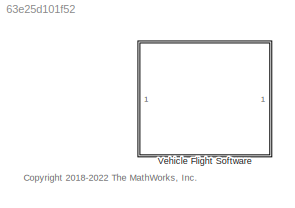
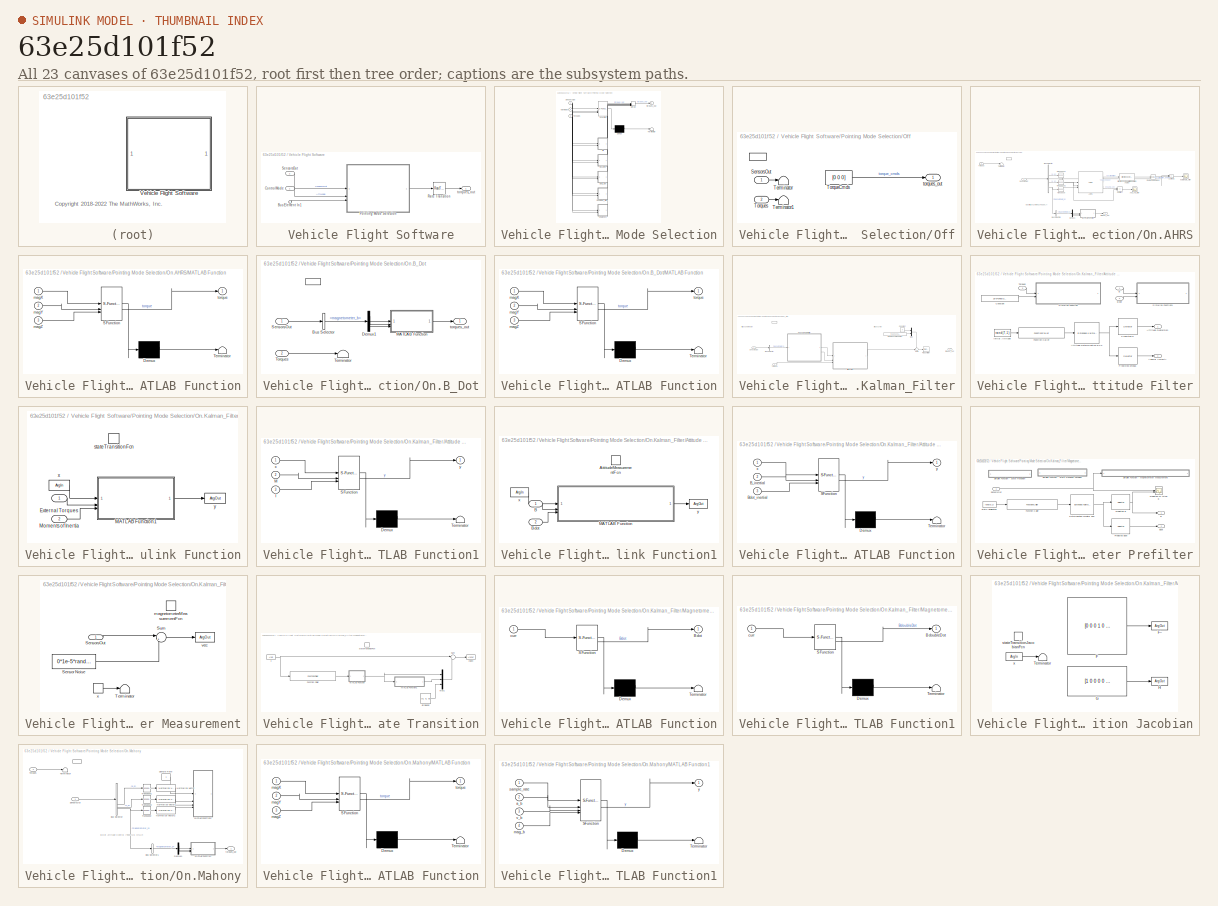
[diagram: thumbnail index - all 23 canvases of the model, root first then tree order]
MODEL slx_63e25d101f52
KIND library
CONFIG AbsTol = auto
CONFIG EnableMultiTasking = off
CONFIG FixedStep = auto
CONFIG MaxStep = auto
CONFIG MinStep = auto
CONFIG RelTol = 1e-3
CONFIG SampleTimeConstraint = Unconstrained
CONFIG SolverName = VariableStepAuto
CONFIG StartTime = 0.0
CONFIG StopTime = 10.0
BLOCK [SubSystem] Vehicle Flight Software
BLOCK [Inport] Vehicle Flight Software/Bus Element In1
  Port = 3
BLOCK [Inport] Vehicle Flight Software/ControlMode
BLOCK [SubSystem] Vehicle Flight Software/Pointing Mode Selection
  ErrorFcn = Stateflow.Translate.translate
  PermitHierarchicalResolution = ExplicitOnly
  SFBlockType = Chart
  SystemSampleTime = 1
  TreatAsAtomicUnit = on
BLOCK [Demux] Vehicle Flight Software/Pointing Mode Selection/ Demux 
  Outputs = 1
BLOCK [Merge] Vehicle Flight Software/Pointing Mode Selection/ Merge 
  Inputs = 6
BLOCK [S-Function] Vehicle Flight Software/Pointing Mode Selection/ SFunction 
  EnableBusSupport = off
  FunctionName = sf_sfun
  PortCounts = [3 2]
  SFcnIsStateOwnerBlock = off
  SFunctionDeploymentMode = off
  Tag = Stateflow S-Function 1
BLOCK [Terminator] Vehicle Flight Software/Pointing Mode Selection/ Terminator 
BLOCK [Inport] Vehicle Flight Software/Pointing Mode Selection/NavMode
  Port = 2
BLOCK [SubSystem] Vehicle Flight Software/Pointing Mode Selection/Off
  PreDeleteFcn = Stateflow.SLINSF.SimulinkMan.removePreDeleteFcn
  UndoDeleteFcn = Stateflow.SLINSF.SimulinkMan.restorePreDeleteFcn
BLOCK [ActionPort] Vehicle Flight Software/Pointing Mode Selection/Off/ 
  CopyFcn = Stateflow.SLINSF.SimulinkMan.removeBlockPreDeleteFcn
  PreDeleteFcn = Stateflow.SLINSF.SimulinkMan.unsafePredeleteFcn
BLOCK [Inport] Vehicle Flight Software/Pointing Mode Selection/Off/SensorsOut
BLOCK [Terminator] Vehicle Flight Software/Pointing Mode Selection/Off/Terminator
BLOCK [Terminator] Vehicle Flight Software/Pointing Mode Selection/Off/Terminator1
BLOCK [Constant] Vehicle Flight Software/Pointing Mode Selection/Off/TorqueCmds
  Value = [0 0 0]
BLOCK [Inport] Vehicle Flight Software/Pointing Mode Selection/Off/Torques
  Port = 2
  PortDimensions = 3
BLOCK [Outport] Vehicle Flight Software/Pointing Mode Selection/Off/torques_out
  VectorParamsAs1DForOutWhenUnconnected = off
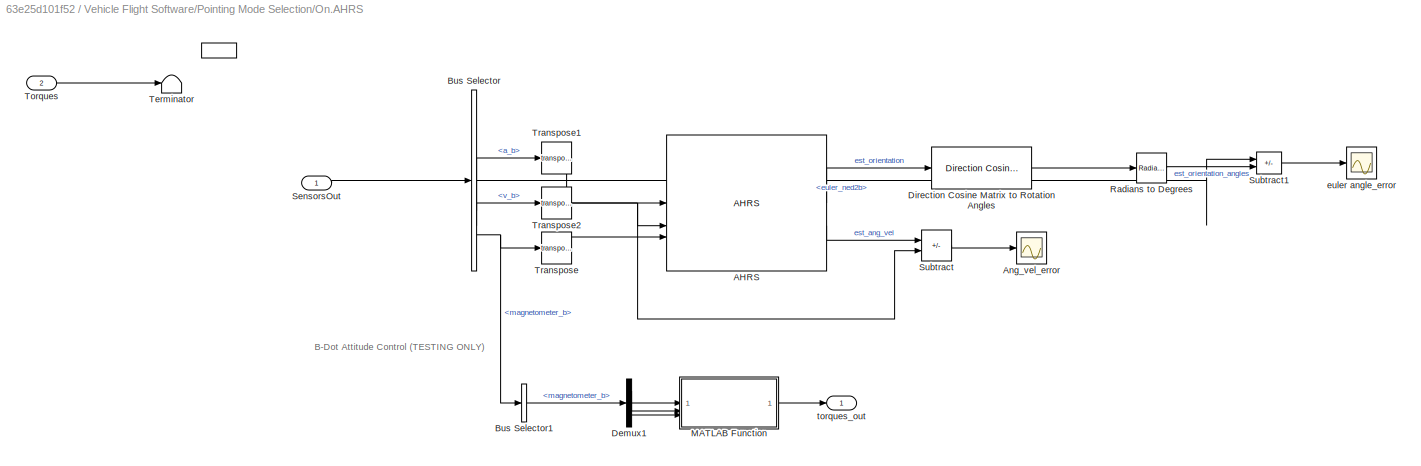
BLOCK [SubSystem] Vehicle Flight Software/Pointing Mode Selection/On.AHRS
  PreDeleteFcn = Stateflow.SLINSF.SimulinkMan.removePreDeleteFcn
  UndoDeleteFcn = Stateflow.SLINSF.SimulinkMan.restorePreDeleteFcn
BLOCK [ActionPort] Vehicle Flight Software/Pointing Mode Selection/On.AHRS/ 
  CopyFcn = Stateflow.SLINSF.SimulinkMan.removeBlockPreDeleteFcn
  PreDeleteFcn = Stateflow.SLINSF.SimulinkMan.unsafePredeleteFcn
BLOCK [Reference] Vehicle Flight Software/Pointing Mode Selection/On.AHRS/AHRS  REF=mspfiltlib/AHRS
  SourceBlock = mspfiltlib/AHRS
  SourceType = fusion.simulink.ahrsfilter
BLOCK [Scope] Vehicle Flight Software/Pointing Mode Selection/On.AHRS/Ang_vel_error
  Floating = off
  NumInputPorts = 1
  ScopeSpecificationString = Simulink.scopes.TimeScopeBlockCfg('CurrentConfiguration', extmgr.ConfigurationSet(extmgr.Configuration('Core','General UI',true),extmgr.Configuration('Core','Source UI',true),extmgr.Configuration('Sources','WiredSimulink',true,'DataLoggingVariableName','ScopeData1'),extmgr.Configuration('Visuals','Time Domain',true,'SerializedDisplays',{struct('MinYLimReal','-0.45696','MaxYLimReal','0.2497','YLabe...<+1472ch>
BLOCK [BusSelector] Vehicle Flight Software/Pointing Mode Selection/On.AHRS/Bus Selector
  OutputSignals = euler_ned2b,a_b,v_b,magnetometer_b
BLOCK [BusSelector] Vehicle Flight Software/Pointing Mode Selection/On.AHRS/Bus Selector1
  OutputSignals = magnetometer_b
BLOCK [Demux] Vehicle Flight Software/Pointing Mode Selection/On.AHRS/Demux1
  Outputs = 3
BLOCK [Reference] Vehicle Flight Software/Pointing Mode Selection/On.AHRS/Direction Cosine Matrix to Rotation Angles  REF=sharedtransform/Direction Cosine Matrix
to Rotation Angles
  AttributesFormatString = Rotation Order: %<rotationOrder>
  LibrarySourceBlock = aerolibtransform2/Direction Cosine Matrix\nto Rotation Angles
  SourceBlock = sharedtransform/Direction Cosine Matrix\nto Rotation Angles
  SourceType = DCM2Ang
BLOCK [SubSystem] Vehicle Flight Software/Pointing Mode Selection/On.AHRS/MATLAB Function
  ErrorFcn = Stateflow.Translate.translate
  PermitHierarchicalResolution = ExplicitOnly
  SFBlockType = MATLAB Function
  TreatAsAtomicUnit = on
BLOCK [Demux] Vehicle Flight Software/Pointing Mode Selection/On.AHRS/MATLAB Function/ Demux 
  Outputs = 1
BLOCK [S-Function] Vehicle Flight Software/Pointing Mode Selection/On.AHRS/MATLAB Function/ SFunction 
  EnableBusSupport = off
  FunctionName = sf_sfun
  PortCounts = [3 2]
  SFcnIsStateOwnerBlock = off
  SFunctionDeploymentMode = off
  Tag = Stateflow S-Function 4
BLOCK [Terminator] Vehicle Flight Software/Pointing Mode Selection/On.AHRS/MATLAB Function/ Terminator 
BLOCK [Inport] Vehicle Flight Software/Pointing Mode Selection/On.AHRS/MATLAB Function/magX
BLOCK [Inport] Vehicle Flight Software/Pointing Mode Selection/On.AHRS/MATLAB Function/magY
  Port = 2
BLOCK [Inport] Vehicle Flight Software/Pointing Mode Selection/On.AHRS/MATLAB Function/magZ
  Port = 3
BLOCK [Outport] Vehicle Flight Software/Pointing Mode Selection/On.AHRS/MATLAB Function/torque
BLOCK [Reference] Vehicle Flight Software/Pointing Mode Selection/On.AHRS/Radians to Degrees  REF=simulink_extras/Transformations/Radians
to Degrees
  SourceBlock = simulink_extras/Transformations/Radians\nto Degrees
  SourceType = RadiansToDegrees
BLOCK [Inport] Vehicle Flight Software/Pointing Mode Selection/On.AHRS/SensorsOut
BLOCK [Sum] Vehicle Flight Software/Pointing Mode Selection/On.AHRS/Subtract
  IconShape = rectangular
  Inputs = +-
BLOCK [Sum] Vehicle Flight Software/Pointing Mode Selection/On.AHRS/Subtract1
  IconShape = rectangular
  Inputs = -+
BLOCK [Terminator] Vehicle Flight Software/Pointing Mode Selection/On.AHRS/Terminator
BLOCK [Inport] Vehicle Flight Software/Pointing Mode Selection/On.AHRS/Torques
  Port = 2
  PortDimensions = 3
BLOCK [Math] Vehicle Flight Software/Pointing Mode Selection/On.AHRS/Transpose
  Operator = transpose
BLOCK [Math] Vehicle Flight Software/Pointing Mode Selection/On.AHRS/Transpose1
  Operator = transpose
BLOCK [Math] Vehicle Flight Software/Pointing Mode Selection/On.AHRS/Transpose2
  Operator = transpose
BLOCK [Scope] Vehicle Flight Software/Pointing Mode Selection/On.AHRS/euler angle_error
  Floating = off
  NumInputPorts = 1
  ScopeSpecificationString = Simulink.scopes.TimeScopeBlockCfg('CurrentConfiguration', extmgr.ConfigurationSet(extmgr.Configuration('Core','General UI',true),extmgr.Configuration('Core','Source UI',true),extmgr.Configuration('Sources','WiredSimulink',true,'DataLoggingVariableName','ScopeData2'),extmgr.Configuration('Visuals','Time Domain',true,'SerializedDisplays',{struct('MinYLimReal','-260.38659','MaxYLimReal','190.91881','...<+1511ch>
BLOCK [Outport] Vehicle Flight Software/Pointing Mode Selection/On.AHRS/torques_out
  VectorParamsAs1DForOutWhenUnconnected = off
BLOCK [SubSystem] Vehicle Flight Software/Pointing Mode Selection/On.B_Dot
  PreDeleteFcn = Stateflow.SLINSF.SimulinkMan.removePreDeleteFcn
  UndoDeleteFcn = Stateflow.SLINSF.SimulinkMan.restorePreDeleteFcn
BLOCK [ActionPort] Vehicle Flight Software/Pointing Mode Selection/On.B_Dot/ 
  CopyFcn = Stateflow.SLINSF.SimulinkMan.removeBlockPreDeleteFcn
  PreDeleteFcn = Stateflow.SLINSF.SimulinkMan.unsafePredeleteFcn
BLOCK [BusSelector] Vehicle Flight Software/Pointing Mode Selection/On.B_Dot/Bus Selector
  OutputSignals = magnetometer_b
BLOCK [Demux] Vehicle Flight Software/Pointing Mode Selection/On.B_Dot/Demux1
  Outputs = 3
BLOCK [SubSystem] Vehicle Flight Software/Pointing Mode Selection/On.B_Dot/MATLAB Function
  ErrorFcn = Stateflow.Translate.translate
  PermitHierarchicalResolution = ExplicitOnly
  SFBlockType = MATLAB Function
  TreatAsAtomicUnit = on
BLOCK [Demux] Vehicle Flight Software/Pointing Mode Selection/On.B_Dot/MATLAB Function/ Demux 
  Outputs = 1
BLOCK [S-Function] Vehicle Flight Software/Pointing Mode Selection/On.B_Dot/MATLAB Function/ SFunction 
  EnableBusSupport = off
  FunctionName = sf_sfun
  PortCounts = [3 2]
  SFcnIsStateOwnerBlock = off
  SFunctionDeploymentMode = off
  Tag = Stateflow S-Function 3
BLOCK [Terminator] Vehicle Flight Software/Pointing Mode Selection/On.B_Dot/MATLAB Function/ Terminator 
BLOCK [Inport] Vehicle Flight Software/Pointing Mode Selection/On.B_Dot/MATLAB Function/magX
BLOCK [Inport] Vehicle Flight Software/Pointing Mode Selection/On.B_Dot/MATLAB Function/magY
  Port = 2
BLOCK [Inport] Vehicle Flight Software/Pointing Mode Selection/On.B_Dot/MATLAB Function/magZ
  Port = 3
BLOCK [Outport] Vehicle Flight Software/Pointing Mode Selection/On.B_Dot/MATLAB Function/torque
BLOCK [Inport] Vehicle Flight Software/Pointing Mode Selection/On.B_Dot/SensorsOut
BLOCK [Terminator] Vehicle Flight Software/Pointing Mode Selection/On.B_Dot/Terminator
BLOCK [Inport] Vehicle Flight Software/Pointing Mode Selection/On.B_Dot/Torques
  Port = 2
  PortDimensions = 3
BLOCK [Outport] Vehicle Flight Software/Pointing Mode Selection/On.B_Dot/torques_out
  VectorParamsAs1DForOutWhenUnconnected = off
BLOCK [SubSystem] Vehicle Flight Software/Pointing Mode Selection/On.Kalman_Filter
  PreDeleteFcn = Stateflow.SLINSF.SimulinkMan.removePreDeleteFcn
  UndoDeleteFcn = Stateflow.SLINSF.SimulinkMan.restorePreDeleteFcn
BLOCK [ActionPort] Vehicle Flight Software/Pointing Mode Selection/On.Kalman_Filter/ 
  CopyFcn = Stateflow.SLINSF.SimulinkMan.removeBlockPreDeleteFcn
  PreDeleteFcn = Stateflow.SLINSF.SimulinkMan.unsafePredeleteFcn
BLOCK [SubSystem] Vehicle Flight Software/Pointing Mode Selection/On.Kalman_Filter/Attitude Filter
  Commented = on
BLOCK [Outport] Vehicle Flight Software/Pointing Mode Selection/On.Kalman_Filter/Attitude Filter/Angular Velocity
  Port = 2
BLOCK [Reference] Vehicle Flight Software/Pointing Mode Selection/On.Kalman_Filter/Attitude Filter/Attitude Determination EKF   REF=sharedTrackingLibrary/Extended Kalman Filter
  LibrarySourceBlock = cstblocks/State Estimation/Extended Kalman Filter
  SourceBlock = sharedTrackingLibrary/Extended Kalman Filter
  SourceType = Extended Kalman Filter
BLOCK [Outport] Vehicle Flight Software/Pointing Mode Selection/On.Kalman_Filter/Attitude Filter/Attitude Quaternion
BLOCK [Inport] Vehicle Flight Software/Pointing Mode Selection/On.Kalman_Filter/Attitude Filter/B
BLOCK [Inport] Vehicle Flight Software/Pointing Mode Selection/On.Kalman_Filter/Attitude Filter/Bdot
  Port = 2
BLOCK [Constant] Vehicle Flight Software/Pointing Mode Selection/On.Kalman_Filter/Attitude Filter/Constant
  Value = 1e-5*ones(3,1)
BLOCK [FunctionCaller] Vehicle Flight Software/Pointing Mode Selection/On.Kalman_Filter/Attitude Filter/Function Caller
  FunctionPrototype = y = AttitudeMeasurementFcn(x)
  InputArgumentSpecifications = <Enter example>
  OutputArgumentSpecifications = <Enter example>
BLOCK [Constant] Vehicle Flight Software/Pointing Mode Selection/On.Kalman_Filter/Attitude Filter/Initial Attitude
  Value = rand(7,1)
BLOCK [Selector] Vehicle Flight Software/Pointing Mode Selection/On.Kalman_Filter/Attitude Filter/Predicted omega
  IndexOptions = Index vector (dialog)
  Indices = [5:7]
  InputPortWidth = 7
  OutputSizes = 1
BLOCK [Selector] Vehicle Flight Software/Pointing Mode Selection/On.Kalman_Filter/Attitude Filter/Predicted q
  IndexOptions = Index vector (dialog)
  Indices = [1:4]
  InputPortWidth = 7
  OutputSizes = 1
BLOCK [SubSystem] Vehicle Flight Software/Pointing Mode Selection/On.Kalman_Filter/Attitude Filter/Simulink Function
  TreatAsAtomicUnit = on
BLOCK [Inport] Vehicle Flight Software/Pointing Mode Selection/On.Kalman_Filter/Attitude Filter/Simulink Function/External Torques
BLOCK [SubSystem] Vehicle Flight Software/Pointing Mode Selection/On.Kalman_Filter/Attitude Filter/Simulink Function/MATLAB Function1
  ErrorFcn = Stateflow.Translate.translate
  PermitHierarchicalResolution = ExplicitOnly
  SFBlockType = MATLAB Function
  TreatAsAtomicUnit = on
BLOCK [Demux] Vehicle Flight Software/Pointing Mode Selection/On.Kalman_Filter/Attitude Filter/Simulink Function/MATLAB Function1/ Demux 
  Outputs = 1
BLOCK [S-Function] Vehicle Flight Software/Pointing Mode Selection/On.Kalman_Filter/Attitude Filter/Simulink Function/MATLAB Function1/ SFunction 
  EnableBusSupport = off
  FunctionName = sf_sfun
  PortCounts = [3 2]
  SFcnIsStateOwnerBlock = off
  SFunctionDeploymentMode = off
  Tag = Stateflow S-Function 2
BLOCK [Terminator] Vehicle Flight Software/Pointing Mode Selection/On.Kalman_Filter/Attitude Filter/Simulink Function/MATLAB Function1/ Terminator 
BLOCK [Inport] Vehicle Flight Software/Pointing Mode Selection/On.Kalman_Filter/Attitude Filter/Simulink Function/MATLAB Function1/I
  Port = 3
BLOCK [Inport] Vehicle Flight Software/Pointing Mode Selection/On.Kalman_Filter/Attitude Filter/Simulink Function/MATLAB Function1/M
  Port = 2
BLOCK [Inport] Vehicle Flight Software/Pointing Mode Selection/On.Kalman_Filter/Attitude Filter/Simulink Function/MATLAB Function1/x
BLOCK [Outport] Vehicle Flight Software/Pointing Mode Selection/On.Kalman_Filter/Attitude Filter/Simulink Function/MATLAB Function1/y
BLOCK [Inport] Vehicle Flight Software/Pointing Mode Selection/On.Kalman_Filter/Attitude Filter/Simulink Function/Moments of Inertia
  Port = 2
BLOCK [TriggerPort] Vehicle Flight Software/Pointing Mode Selection/On.Kalman_Filter/Attitude Filter/Simulink Function/stateTransitionFcn
  FunctionName = stateTransitionFcn
  FunctionVisibility = scoped
  IsSimulinkFunction = on
  StatesWhenEnabling = held
  TriggerType = function-call
  VariantControl = (inherit)
BLOCK [ArgIn] Vehicle Flight Software/Pointing Mode Selection/On.Kalman_Filter/Attitude Filter/Simulink Function/x
  ArgumentName = x
  DisableCoverage = on
  PortDimensions = 7
BLOCK [ArgOut] Vehicle Flight Software/Pointing Mode Selection/On.Kalman_Filter/Attitude Filter/Simulink Function/y
  ArgumentName = y
  DisableCoverage = on
  PortDimensions = 7
BLOCK [SubSystem] Vehicle Flight Software/Pointing Mode Selection/On.Kalman_Filter/Attitude Filter/Simulink Function1
  TreatAsAtomicUnit = on
BLOCK [TriggerPort] Vehicle Flight Software/Pointing Mode Selection/On.Kalman_Filter/Attitude Filter/Simulink Function1/AttitudeMeasurementFcn
  FunctionName = AttitudeMeasurementFcn
  FunctionVisibility = scoped
  IsSimulinkFunction = on
  StatesWhenEnabling = held
  TriggerType = function-call
  VariantControl = (inherit)
BLOCK [Inport] Vehicle Flight Software/Pointing Mode Selection/On.Kalman_Filter/Attitude Filter/Simulink Function1/B
BLOCK [Inport] Vehicle Flight Software/Pointing Mode Selection/On.Kalman_Filter/Attitude Filter/Simulink Function1/Bdot
  Port = 2
BLOCK [SubSystem] Vehicle Flight Software/Pointing Mode Selection/On.Kalman_Filter/Attitude Filter/Simulink Function1/MATLAB Function
  ErrorFcn = Stateflow.Translate.translate
  PermitHierarchicalResolution = ExplicitOnly
  SFBlockType = MATLAB Function
  TreatAsAtomicUnit = on
BLOCK [Demux] Vehicle Flight Software/Pointing Mode Selection/On.Kalman_Filter/Attitude Filter/Simulink Function1/MATLAB Function/ Demux 
  Outputs = 1
BLOCK [S-Function] Vehicle Flight Software/Pointing Mode Selection/On.Kalman_Filter/Attitude Filter/Simulink Function1/MATLAB Function/ SFunction 
  EnableBusSupport = off
  FunctionName = sf_sfun
  PortCounts = [3 2]
  SFcnIsStateOwnerBlock = off
  SFunctionDeploymentMode = off
  Tag = Stateflow S-Function 7
BLOCK [Terminator] Vehicle Flight Software/Pointing Mode Selection/On.Kalman_Filter/Attitude Filter/Simulink Function1/MATLAB Function/ Terminator 
BLOCK [Inport] Vehicle Flight Software/Pointing Mode Selection/On.Kalman_Filter/Attitude Filter/Simulink Function1/MATLAB Function/B_inertial
  Port = 2
BLOCK [Inport] Vehicle Flight Software/Pointing Mode Selection/On.Kalman_Filter/Attitude Filter/Simulink Function1/MATLAB Function/Bdot_inertial
  Port = 3
BLOCK [Inport] Vehicle Flight Software/Pointing Mode Selection/On.Kalman_Filter/Attitude Filter/Simulink Function1/MATLAB Function/x
BLOCK [Outport] Vehicle Flight Software/Pointing Mode Selection/On.Kalman_Filter/Attitude Filter/Simulink Function1/MATLAB Function/y
BLOCK [ArgIn] Vehicle Flight Software/Pointing Mode Selection/On.Kalman_Filter/Attitude Filter/Simulink Function1/x
  ArgumentName = x
  DisableCoverage = on
  PortDimensions = 7
BLOCK [ArgOut] Vehicle Flight Software/Pointing Mode Selection/On.Kalman_Filter/Attitude Filter/Simulink Function1/y
  ArgumentName = y
  DisableCoverage = on
  PortDimensions = 6
BLOCK [Inport] Vehicle Flight Software/Pointing Mode Selection/On.Kalman_Filter/Attitude Filter/Torques
  Port = 3
BLOCK [BusSelector] Vehicle Flight Software/Pointing Mode Selection/On.Kalman_Filter/Bus Selector
  OutputAsBus = on
  OutputSignals = magnetometer_b
BLOCK [Constant] Vehicle Flight Software/Pointing Mode Selection/On.Kalman_Filter/Constant
  Commented = on
  Value = 0
BLOCK [SubSystem] Vehicle Flight Software/Pointing Mode Selection/On.Kalman_Filter/Magnetometer Prefilter
  Commented = on
BLOCK [Outport] Vehicle Flight Software/Pointing Mode Selection/On.Kalman_Filter/Magnetometer Prefilter/B
BLOCK [Outport] Vehicle Flight Software/Pointing Mode Selection/On.Kalman_Filter/Magnetometer Prefilter/Bdot
  Port = 2
BLOCK [Reference] Vehicle Flight Software/Pointing Mode Selection/On.Kalman_Filter/Magnetometer Prefilter/Determination Prefilter EKF  REF=sharedTrackingLibrary/Extended Kalman Filter
  LibrarySourceBlock = cstblocks/State Estimation/Extended Kalman Filter
  SourceBlock = sharedTrackingLibrary/Extended Kalman Filter
  SourceType = Extended Kalman Filter
BLOCK [FunctionCaller] Vehicle Flight Software/Pointing Mode Selection/On.Kalman_Filter/Magnetometer Prefilter/Function Caller
  FunctionPrototype = vec = magnetometerMeasurementFcn(x)
  InputArgumentSpecifications = <Enter example>
  OutputArgumentSpecifications = <Enter example>
BLOCK [Selector] Vehicle Flight Software/Pointing Mode Selection/On.Kalman_Filter/Magnetometer Prefilter/Predicted B
  IndexOptions = Index vector (dialog)
  Indices = [1:3]
  InputPortWidth = 9
  OutputSizes = 1
BLOCK [Selector] Vehicle Flight Software/Pointing Mode Selection/On.Kalman_Filter/Magnetometer Prefilter/Predicted Bdot
  IndexOptions = Index vector (dialog)
  Indices = [4:6]
  InputPortWidth = 9
  OutputSizes = 1
BLOCK [Scope] Vehicle Flight Software/Pointing Mode Selection/On.Kalman_Filter/Magnetometer Prefilter/Predicted vs Actual B
  Floating = off
  NumInputPorts = 2
  ScopeSpecificationString = Simulink.scopes.TimeScopeBlockCfg('CurrentConfiguration', extmgr.ConfigurationSet(extmgr.Configuration('Core','General UI',true),extmgr.Configuration('Core','Source UI',true),extmgr.Configuration('Sources','WiredSimulink',true,'DataLoggingVariableName','ScopeData1'),extmgr.Configuration('Visuals','Time Domain',true,'SerializedDisplays',{struct('MinYLimReal','-10.00000','MaxYLimReal','-6.60339','YL...<+2968ch>
BLOCK [Inport] Vehicle Flight Software/Pointing Mode Selection/On.Kalman_Filter/Magnetometer Prefilter/SensorsOut
  PortDimensions = 3
BLOCK [SubSystem] Vehicle Flight Software/Pointing Mode Selection/On.Kalman_Filter/Magnetometer Prefilter/Simulink Function - Magnetometer Measurement
  TreatAsAtomicUnit = on
BLOCK [Constant] Vehicle Flight Software/Pointing Mode Selection/On.Kalman_Filter/Magnetometer Prefilter/Simulink Function - Magnetometer Measurement/Sensor Noise
  SampleTime = -1
  Value = 0*1e-5*rand(3,1)
BLOCK [Inport] Vehicle Flight Software/Pointing Mode Selection/On.Kalman_Filter/Magnetometer Prefilter/Simulink Function - Magnetometer Measurement/SensorsOut
BLOCK [Sum] Vehicle Flight Software/Pointing Mode Selection/On.Kalman_Filter/Magnetometer Prefilter/Simulink Function - Magnetometer Measurement/Sum
  Inputs = |++
BLOCK [Terminator] Vehicle Flight Software/Pointing Mode Selection/On.Kalman_Filter/Magnetometer Prefilter/Simulink Function - Magnetometer Measurement/Terminator
BLOCK [TriggerPort] Vehicle Flight Software/Pointing Mode Selection/On.Kalman_Filter/Magnetometer Prefilter/Simulink Function - Magnetometer Measurement/magnetometerMeasurementFcn
  FunctionName = magnetometerMeasurementFcn
  FunctionVisibility = scoped
  IsSimulinkFunction = on
  StatesWhenEnabling = held
  TriggerType = function-call
  VariantControl = Variant
BLOCK [ArgOut] Vehicle Flight Software/Pointing Mode Selection/On.Kalman_Filter/Magnetometer Prefilter/Simulink Function - Magnetometer Measurement/vec
  ArgumentName = vec
  DisableCoverage = on
  PortDimensions = 3
BLOCK [ArgIn] Vehicle Flight Software/Pointing Mode Selection/On.Kalman_Filter/Magnetometer Prefilter/Simulink Function - Magnetometer Measurement/x
  ArgumentName = x
  PortDimensions = 9
BLOCK [SubSystem] Vehicle Flight Software/Pointing Mode Selection/On.Kalman_Filter/Magnetometer Prefilter/Simulink Function - State Transition
  TreatAsAtomicUnit = on
BLOCK [SubSystem] Vehicle Flight Software/Pointing Mode Selection/On.Kalman_Filter/Magnetometer Prefilter/Simulink Function - State Transition Jacobian
  Commented = on
  TreatAsAtomicUnit = on
BLOCK [Constant] Vehicle Flight Software/Pointing Mode Selection/On.Kalman_Filter/Magnetometer Prefilter/Simulink Function - State Transition Jacobian/F
  Value = [0 0 0 1 0 0 0 0 0;\n 0 0 0 0 1 0 0 0 0; 0 0 0 0 0 1 0 0 0;  0 0 0 0 0 0 1 0 0;\n 0 0 0 0 0 0 0 1 0;\n0 0 0 0 0 0 0 0 1; 0 0 0 0 0 0 0 0 0; 0 0 0 0 0 0 0 0 0; 0 0 0 0 0 0 0 0 0]
  VectorParams1D = off
BLOCK [ArgOut] Vehicle Flight Software/Pointing Mode Selection/On.Kalman_Filter/Magnetometer Prefilter/Simulink Function - State Transition Jacobian/F~
  ArgumentName = F
  DisableCoverage = on
  PortDimensions = [4 4]
BLOCK [Constant] Vehicle Flight Software/Pointing Mode Selection/On.Kalman_Filter/Magnetometer Prefilter/Simulink Function - State Transition Jacobian/G
  Value = [1 0 0 0 0 0 0 0 0; 0 1 0 0 0 0 0 0 0; 0 0 1 0 0 0 0 0 0]
  VectorParams1D = off
BLOCK [ArgOut] Vehicle Flight Software/Pointing Mode Selection/On.Kalman_Filter/Magnetometer Prefilter/Simulink Function - State Transition Jacobian/H
  ArgumentName = H
  Port = 2
  PortDimensions = [4 2]
BLOCK [Terminator] Vehicle Flight Software/Pointing Mode Selection/On.Kalman_Filter/Magnetometer Prefilter/Simulink Function - State Transition Jacobian/Terminator
BLOCK [TriggerPort] Vehicle Flight Software/Pointing Mode Selection/On.Kalman_Filter/Magnetometer Prefilter/Simulink Function - State Transition Jacobian/stateTransitionJacobianFcn
  FunctionName = stateTransitionJacobianFcn
  FunctionVisibility = scoped
  IsSimulinkFunction = on
  StatesWhenEnabling = held
  TriggerType = function-call
  VariantControl = Variant
BLOCK [ArgIn] Vehicle Flight Software/Pointing Mode Selection/On.Kalman_Filter/Magnetometer Prefilter/Simulink Function - State Transition Jacobian/x
  ArgumentName = x
  DisableCoverage = on
  PortDimensions = 4
BLOCK [Constant] Vehicle Flight Software/Pointing Mode Selection/On.Kalman_Filter/Magnetometer Prefilter/Simulink Function - State Transition/BtripleDot
  Value = [0, 0, 0]
BLOCK [FunctionCaller] Vehicle Flight Software/Pointing Mode Selection/On.Kalman_Filter/Magnetometer Prefilter/Simulink Function - State Transition/Function Caller
  FunctionPrototype = vec = magnetometerMeasurementFcn(x)
  InputArgumentSpecifications = <Enter example>
  OutputArgumentSpecifications = <Enter example>
BLOCK [SubSystem] Vehicle Flight Software/Pointing Mode Selection/On.Kalman_Filter/Magnetometer Prefilter/Simulink Function - State Transition/MATLAB Function
  ErrorFcn = Stateflow.Translate.translate
  PermitHierarchicalResolution = ExplicitOnly
  SFBlockType = MATLAB Function
  TreatAsAtomicUnit = on
BLOCK [Demux] Vehicle Flight Software/Pointing Mode Selection/On.Kalman_Filter/Magnetometer Prefilter/Simulink Function - State Transition/MATLAB Function/ Demux 
  Outputs = 1
BLOCK [S-Function] Vehicle Flight Software/Pointing Mode Selection/On.Kalman_Filter/Magnetometer Prefilter/Simulink Function - State Transition/MATLAB Function/ SFunction 
  EnableBusSupport = off
  FunctionName = sf_sfun
  PortCounts = [1 2]
  SFcnIsStateOwnerBlock = off
  SFunctionDeploymentMode = off
  Tag = Stateflow S-Function 5
BLOCK [Terminator] Vehicle Flight Software/Pointing Mode Selection/On.Kalman_Filter/Magnetometer Prefilter/Simulink Function - State Transition/MATLAB Function/ Terminator 
BLOCK [Outport] Vehicle Flight Software/Pointing Mode Selection/On.Kalman_Filter/Magnetometer Prefilter/Simulink Function - State Transition/MATLAB Function/Bdot
BLOCK [Inport] Vehicle Flight Software/Pointing Mode Selection/On.Kalman_Filter/Magnetometer Prefilter/Simulink Function - State Transition/MATLAB Function/curr
BLOCK [SubSystem] Vehicle Flight Software/Pointing Mode Selection/On.Kalman_Filter/Magnetometer Prefilter/Simulink Function - State Transition/MATLAB Function1
  ErrorFcn = Stateflow.Translate.translate
  PermitHierarchicalResolution = ExplicitOnly
  SFBlockType = MATLAB Function
  TreatAsAtomicUnit = on
BLOCK [Demux] Vehicle Flight Software/Pointing Mode Selection/On.Kalman_Filter/Magnetometer Prefilter/Simulink Function - State Transition/MATLAB Function1/ Demux 
  Outputs = 1
BLOCK [S-Function] Vehicle Flight Software/Pointing Mode Selection/On.Kalman_Filter/Magnetometer Prefilter/Simulink Function - State Transition/MATLAB Function1/ SFunction 
  EnableBusSupport = off
  FunctionName = sf_sfun
  PortCounts = [1 2]
  SFcnIsStateOwnerBlock = off
  SFunctionDeploymentMode = off
  Tag = Stateflow S-Function 6
BLOCK [Terminator] Vehicle Flight Software/Pointing Mode Selection/On.Kalman_Filter/Magnetometer Prefilter/Simulink Function - State Transition/MATLAB Function1/ Terminator 
BLOCK [Outport] Vehicle Flight Software/Pointing Mode Selection/On.Kalman_Filter/Magnetometer Prefilter/Simulink Function - State Transition/MATLAB Function1/BdoubleDot
BLOCK [Inport] Vehicle Flight Software/Pointing Mode Selection/On.Kalman_Filter/Magnetometer Prefilter/Simulink Function - State Transition/MATLAB Function1/curr
BLOCK [Mux] Vehicle Flight Software/Pointing Mode Selection/On.Kalman_Filter/Magnetometer Prefilter/Simulink Function - State Transition/Mux1
  DisplayOption = bar
  Inputs = 3
BLOCK [Sum] Vehicle Flight Software/Pointing Mode Selection/On.Kalman_Filter/Magnetometer Prefilter/Simulink Function - State Transition/Sum
  Inputs = |++
BLOCK [TriggerPort] Vehicle Flight Software/Pointing Mode Selection/On.Kalman_Filter/Magnetometer Prefilter/Simulink Function - State Transition/stateTransitionFcn
  FunctionName = stateTransitionFcn
  FunctionVisibility = scoped
  IsSimulinkFunction = on
  StatesWhenEnabling = held
  TriggerType = function-call
  VariantControl = Variant
BLOCK [ArgIn] Vehicle Flight Software/Pointing Mode Selection/On.Kalman_Filter/Magnetometer Prefilter/Simulink Function - State Transition/x
  ArgumentName = x
  DisableCoverage = on
  LockScale = on
  PortDimensions = 9
BLOCK [ArgOut] Vehicle Flight Software/Pointing Mode Selection/On.Kalman_Filter/Magnetometer Prefilter/Simulink Function - State Transition/xNext
  ArgumentName = xNext
  DisableCoverage = on
  PortDimensions = 9
BLOCK [Constant] Vehicle Flight Software/Pointing Mode Selection/On.Kalman_Filter/Magnetometer Prefilter/State Initialization
  SampleTime = 1
  Value = rand(9,1)
BLOCK [Mux] Vehicle Flight Software/Pointing Mode Selection/On.Kalman_Filter/Mux
  Commented = on
  DisplayOption = bar
  Inputs = 2
BLOCK [Reference] Vehicle Flight Software/Pointing Mode Selection/On.Kalman_Filter/PID Controller  REF=slpidlib/PID Controller
  Commented = on
  LibrarySourceBlock = simulink/Continuous/PID Controller
  SourceBlock = slpidlib/PID Controller
  SourceType = PID 1dof
BLOCK [Constant] Vehicle Flight Software/Pointing Mode Selection/On.Kalman_Filter/Providence (Geodetic)
  Commented = on
  Value = [41.825226,-71.418884,6388]
BLOCK [Inport] Vehicle Flight Software/Pointing Mode Selection/On.Kalman_Filter/SensorsOut
BLOCK [Sum] Vehicle Flight Software/Pointing Mode Selection/On.Kalman_Filter/Sum
  Commented = on
  Inputs = -+|
BLOCK [Inport] Vehicle Flight Software/Pointing Mode Selection/On.Kalman_Filter/Torques
  Port = 2
  PortDimensions = 3
BLOCK [Outport] Vehicle Flight Software/Pointing Mode Selection/On.Kalman_Filter/torques_out
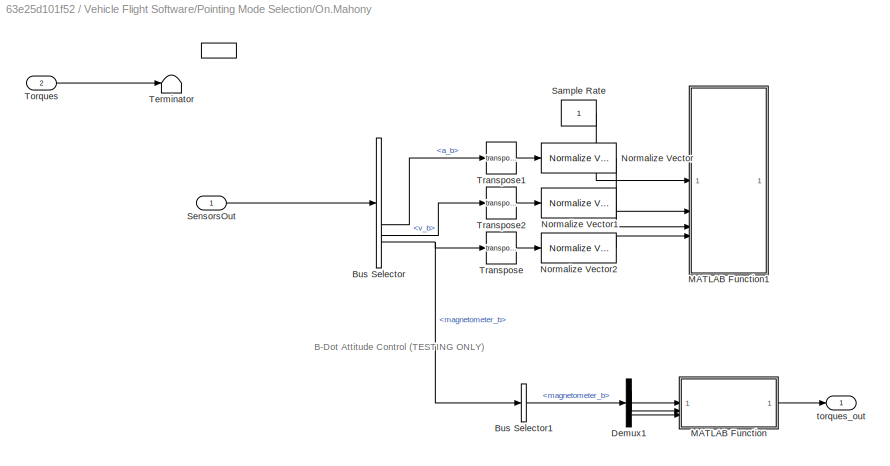
BLOCK [SubSystem] Vehicle Flight Software/Pointing Mode Selection/On.Mahony
  PreDeleteFcn = Stateflow.SLINSF.SimulinkMan.removePreDeleteFcn
  UndoDeleteFcn = Stateflow.SLINSF.SimulinkMan.restorePreDeleteFcn
BLOCK [ActionPort] Vehicle Flight Software/Pointing Mode Selection/On.Mahony/ 
  CopyFcn = Stateflow.SLINSF.SimulinkMan.removeBlockPreDeleteFcn
  PreDeleteFcn = Stateflow.SLINSF.SimulinkMan.unsafePredeleteFcn
BLOCK [BusSelector] Vehicle Flight Software/Pointing Mode Selection/On.Mahony/Bus Selector
  OutputSignals = euler_ned2b,a_b,v_b,magnetometer_b
BLOCK [BusSelector] Vehicle Flight Software/Pointing Mode Selection/On.Mahony/Bus Selector1
  OutputSignals = magnetometer_b
BLOCK [Demux] Vehicle Flight Software/Pointing Mode Selection/On.Mahony/Demux1
  Outputs = 3
BLOCK [SubSystem] Vehicle Flight Software/Pointing Mode Selection/On.Mahony/MATLAB Function
  ErrorFcn = Stateflow.Translate.translate
  PermitHierarchicalResolution = ExplicitOnly
  SFBlockType = MATLAB Function
  TreatAsAtomicUnit = on
BLOCK [Demux] Vehicle Flight Software/Pointing Mode Selection/On.Mahony/MATLAB Function/ Demux 
  Outputs = 1
BLOCK [S-Function] Vehicle Flight Software/Pointing Mode Selection/On.Mahony/MATLAB Function/ SFunction 
  EnableBusSupport = off
  FunctionName = sf_sfun
  PortCounts = [3 2]
  SFcnIsStateOwnerBlock = off
  SFunctionDeploymentMode = off
  Tag = Stateflow S-Function 8
BLOCK [Terminator] Vehicle Flight Software/Pointing Mode Selection/On.Mahony/MATLAB Function/ Terminator 
BLOCK [Inport] Vehicle Flight Software/Pointing Mode Selection/On.Mahony/MATLAB Function/magX
BLOCK [Inport] Vehicle Flight Software/Pointing Mode Selection/On.Mahony/MATLAB Function/magY
  Port = 2
BLOCK [Inport] Vehicle Flight Software/Pointing Mode Selection/On.Mahony/MATLAB Function/magZ
  Port = 3
BLOCK [Outport] Vehicle Flight Software/Pointing Mode Selection/On.Mahony/MATLAB Function/torque
BLOCK [SubSystem] Vehicle Flight Software/Pointing Mode Selection/On.Mahony/MATLAB Function1
  ErrorFcn = Stateflow.Translate.translate
  PermitHierarchicalResolution = ExplicitOnly
  SFBlockType = MATLAB Function
  TreatAsAtomicUnit = on
BLOCK [Demux] Vehicle Flight Software/Pointing Mode Selection/On.Mahony/MATLAB Function1/ Demux 
  Outputs = 1
BLOCK [S-Function] Vehicle Flight Software/Pointing Mode Selection/On.Mahony/MATLAB Function1/ SFunction 
  EnableBusSupport = off
  FunctionName = sf_sfun
  PortCounts = [4 2]
  SFcnIsStateOwnerBlock = off
  SFunctionDeploymentMode = off
  Tag = Stateflow S-Function 9
BLOCK [Terminator] Vehicle Flight Software/Pointing Mode Selection/On.Mahony/MATLAB Function1/ Terminator 
BLOCK [Inport] Vehicle Flight Software/Pointing Mode Selection/On.Mahony/MATLAB Function1/a_b
  Port = 2
BLOCK [Inport] Vehicle Flight Software/Pointing Mode Selection/On.Mahony/MATLAB Function1/mag_b
  Port = 4
BLOCK [Inport] Vehicle Flight Software/Pointing Mode Selection/On.Mahony/MATLAB Function1/sample_rate
BLOCK [Inport] Vehicle Flight Software/Pointing Mode Selection/On.Mahony/MATLAB Function1/v_b
  Port = 3
BLOCK [Outport] Vehicle Flight Software/Pointing Mode Selection/On.Mahony/MATLAB Function1/y
BLOCK [Reference] Vehicle Flight Software/Pointing Mode Selection/On.Mahony/Normalize Vector  REF=vrlib/Utilities/Normalize Vector
  SourceBlock = vrlib/Utilities/Normalize Vector
  SourceType = Normalize Vector
BLOCK [Reference] Vehicle Flight Software/Pointing Mode Selection/On.Mahony/Normalize Vector1  REF=vrlib/Utilities/Normalize Vector
  SourceBlock = vrlib/Utilities/Normalize Vector
  SourceType = Normalize Vector
BLOCK [Reference] Vehicle Flight Software/Pointing Mode Selection/On.Mahony/Normalize Vector2  REF=vrlib/Utilities/Normalize Vector
  SourceBlock = vrlib/Utilities/Normalize Vector
  SourceType = Normalize Vector
BLOCK [Constant] Vehicle Flight Software/Pointing Mode Selection/On.Mahony/Sample Rate
BLOCK [Inport] Vehicle Flight Software/Pointing Mode Selection/On.Mahony/SensorsOut
BLOCK [Terminator] Vehicle Flight Software/Pointing Mode Selection/On.Mahony/Terminator
BLOCK [Inport] Vehicle Flight Software/Pointing Mode Selection/On.Mahony/Torques
  Port = 2
  PortDimensions = 3
BLOCK [Math] Vehicle Flight Software/Pointing Mode Selection/On.Mahony/Transpose
  Operator = transpose
BLOCK [Math] Vehicle Flight Software/Pointing Mode Selection/On.Mahony/Transpose1
  Operator = transpose
BLOCK [Math] Vehicle Flight Software/Pointing Mode Selection/On.Mahony/Transpose2
  Operator = transpose
BLOCK [Outport] Vehicle Flight Software/Pointing Mode Selection/On.Mahony/torques_out
  VectorParamsAs1DForOutWhenUnconnected = off
BLOCK [Inport] Vehicle Flight Software/Pointing Mode Selection/SensorsOut
BLOCK [Inport] Vehicle Flight Software/Pointing Mode Selection/Torques
  Port = 3
BLOCK [Outport] Vehicle Flight Software/Pointing Mode Selection/torques_out
  VectorParamsAs1DForOutWhenUnconnected = off
BLOCK [RateTransition] Vehicle Flight Software/Rate Transition
  OutPortSampleTime = 0
BLOCK [Inport] Vehicle Flight Software/SensorsOut
  Port = 2
BLOCK [Outport] Vehicle Flight Software/torques_out
  VectorParamsAs1DForOutWhenUnconnected = off
ANNOTATION (root): <copyright redacted>
ANNOTATION Vehicle Flight Software/Pointing Mode Selection/On.AHRS: B-Dot Attitude Control (TESTING ONLY)
ANNOTATION Vehicle Flight Software/Pointing Mode Selection/On.Kalman_Filter: Attitude Control
ANNOTATION Vehicle Flight Software/Pointing Mode Selection/On.Kalman_Filter: Attitude Determination
ANNOTATION Vehicle Flight Software/Pointing Mode Selection/On.Mahony: B-Dot Attitude Control (TESTING ONLY)
LINE Vehicle Flight Software/Bus Element In1:1 -> Vehicle Flight Software/Pointing Mode Selection:3
LINE Vehicle Flight Software/ControlMode:1 -> Vehicle Flight Software/Pointing Mode Selection:2
LINE Vehicle Flight Software/Pointing Mode Selection:1 -> Vehicle Flight Software/Rate Transition:1
LINE Vehicle Flight Software/Rate Transition:1 -> Vehicle Flight Software/torques_out:1
LINE Vehicle Flight Software/SensorsOut:1 -> Vehicle Flight Software/Pointing Mode Selection:1
CHART Vehicle Flight Software/Pointing Mode Selection/On.Kalman_Filter/Attitude Filter/Simulink Function/MATLAB Function1 states=1 transitions=1
  STATE_LABEL 'eML_blk_kernel()'
  STATE_LABEL 'SCRIPT:\n%#codegen\nfunction y = stateTransitionHelperFcn(x, M, I)\n    q = x(1:4);\n    omega_x = x(5);\n    omega_y = x(6); \n    omega_z = x(7);\n    Mx = M(1);\n    My = M(2);\n    Mz = M(3);\n    Ix = I(1); \n    Iy = I(2); \n    Iz = I(3); \n\n    q_dot = 1/2 * q * [0; omega_x; omega_y; omega_z]; \n    omega_x_dot = (Mx - (Iz - Iy)*omega_y*omega_z)/Ix;\n    omega_y_dot = (My - (Ix - Iz)*omega_x*omega_z)/Iy;...<+121ch>'
CHART Vehicle Flight Software/Pointing Mode Selection/On.B_Dot/MATLAB Function states=1 transitions=1
  STATE_LABEL 'eML_blk_kernel()'
  STATE_LABEL 'SCRIPT:\nfunction torque = fcn(magX, magY, magZ)\n    persistent coreMagX coreMagY airMagZ prev_measurement\n    % Define the parameters\n    core_radius = 0.005;\n    core_length = 0.045;\n    layers = 6;\n    temp = 20;\n    side_length = 0.045;\n    air_length = 0.025;\n    air_layers = 5; \n\n    if isempty(coreMagX) || isempty(coreMagY) || isempty(airMagZ)\n        coreMagX = CoreMagnetorquer(core_radius,...<+849ch>'  <repeated x3 — deduplicated; at blocks: MATLAB Function>
CHART Vehicle Flight Software/Pointing Mode Selection/On.AHRS/MATLAB Function states=1 transitions=1
  STATE_LABEL 'eML_blk_kernel()'
CHART Vehicle Flight Software/Pointing Mode Selection/On.Kalman_Filter/Magnetometer Prefilter/Simulink Function - State Transition/MATLAB Function states=1 transitions=1
  STATE_LABEL 'eML_blk_kernel()'
  STATE_LABEL 'SCRIPT:\n%#codegen\nfunction Bdot = Bdiff(curr)\n    persistent prev;\n\n    if isempty(prev)\n       prev = [0; 0; 0];\n    end\n    \n    Bdot = curr - prev; \n    prev = curr;\nend\n\n'
CHART Vehicle Flight Software/Pointing Mode Selection/On.Kalman_Filter/Magnetometer Prefilter/Simulink Function - State Transition/MATLAB Function1 states=1 transitions=1
  STATE_LABEL 'eML_blk_kernel()'
  STATE_LABEL 'SCRIPT:\n%#codegen\nfunction BdoubleDot = BdotDiff(curr)\n    persistent prev;\n\n    if isempty(prev)\n       prev = [0; 0; 0];\n    end\n    \n    BdoubleDot = curr - prev; \n    prev = curr;\nend\n\n'
CHART Vehicle Flight Software/Pointing Mode Selection/On.Kalman_Filter/Attitude Filter/Simulink Function1/MATLAB Function states=1 transitions=1
  STATE_LABEL 'eML_blk_kernel()'
  STATE_LABEL 'SCRIPT:\n%#codegen\nfunction y = AttitudeMeasurementFcn(x, B_inertial, Bdot_inertial)\n    q = x(1:4); \n    omega = x(5:7);\n\n    B_body = quadconj(q) * [0; B_inertial] * q;\n    \n    term1 = 1/2 * quadconj(q) * omega * [0; B_inertial] * q;\n    term2 = quadconj(q) * [0; Bdot_inertial] * q; \n    term3 = quadconj(q) * [0; B_inertial] * 1/2 * q * omega;\n    Bdot_body = term1 + term2 + term3;\n\n    %Casting...<+112ch>'
CHART Vehicle Flight Software/Pointing Mode Selection/On.Mahony/MATLAB Function states=1 transitions=1
  STATE_LABEL 'eML_blk_kernel()'
CHART Vehicle Flight Software/Pointing Mode Selection/On.Mahony/MATLAB Function1 states=1 transitions=1
  STATE_LABEL 'eML_blk_kernel()'
  STATE_LABEL 'SCRIPT:\nfunction y = fcn(sample_rate, a_b, v_b, mag_b)\n\n\ny = sample_rate;\n'
CHART Vehicle Flight Software/Pointing Mode Selection states=7 transitions=12
  STATE_LABEL 'On'
  STATE_LABEL 'Transition'
  STATE_LABEL 'B_Dot'
  STATE_LABEL 'Mahony'
  STATE_LABEL 'AHRS'
  STATE_LABEL 'Kalman_Filter'
  STATE_LABEL '[NavMode == 2]'
  STATE_LABEL '[NavMode ~= 2]'
  STATE_LABEL '[NavMode == 1]'
  STATE_LABEL '[NavMode ~= 1]'
  STATE_LABEL '[NavMode == 3]'
  STATE_LABEL '[NavMode ~= 3]'
  STATE_LABEL '[NavMode == 4]'
  STATE_LABEL '[NavMode ~= 4]'
  STATE_LABEL 'Transition'
  STATE_LABEL 'B_Dot'
  STATE_LABEL 'Mahony'
  STATE_LABEL 'AHRS'
  STATE_LABEL 'Kalman_Filter'
  STATE_LABEL 'Off'
CHART  states=0 transitions=0
CHART  states=0 transitions=0
CHART  states=0 transitions=0
CHART  states=0 transitions=0
CHART  states=0 transitions=0
CHART  states=0 transitions=0
CHART  states=0 transitions=0
CHART  states=0 transitions=0
CHART  states=0 transitions=0
